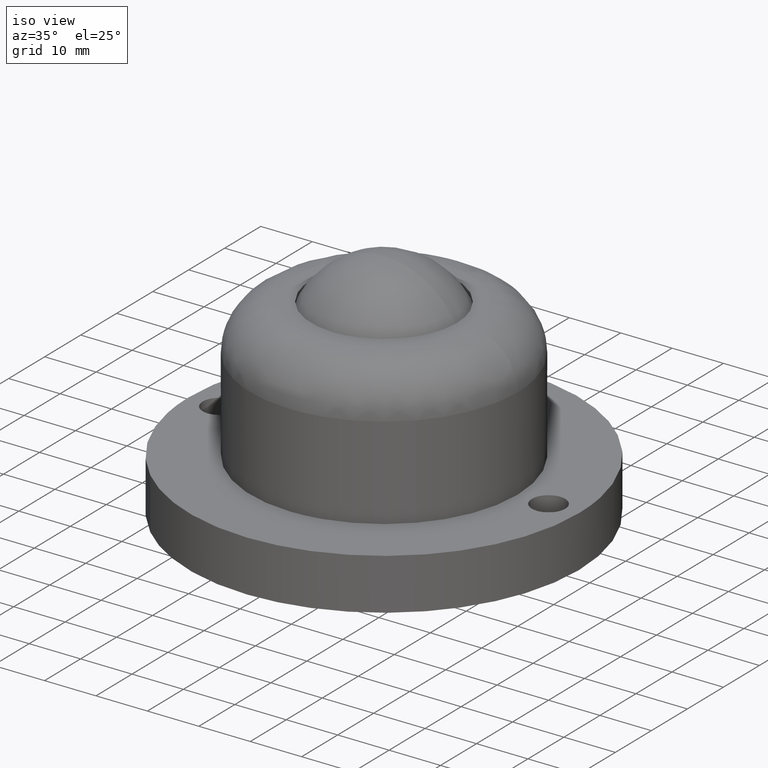
[diagram: clean part render]
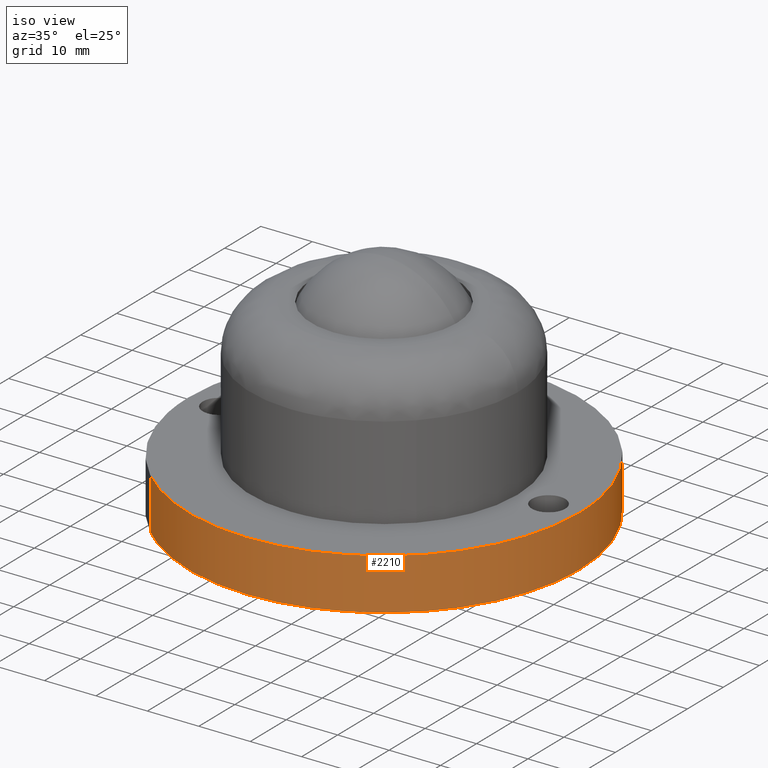
[diagram: same view with one face highlighted and labeled with its STEP entity id]
A machine part, iso view. The second image highlights one B-rep face of the part: STEP entity #2210.
In plain terms, the highlighted face is a freeform B-spline surface patch.
Its self-contained STEP definition (entity closure, byte-faithful):
#1354=CARTESIAN_POINT('',(-26.157473891689861,-27.564226083921952,10.0));
#1355=VERTEX_POINT('',#1354);
#1370=CARTESIAN_POINT('',(0.0,-38.0,10.0));
#1371=VERTEX_POINT('',#1370);
#1372=CARTESIAN_POINT('',(0.0,-38.0,10.0));
#1373=CARTESIAN_POINT('',(-2.028546607708973,-38.000156696778113,10.000000000000011));
#1374=CARTESIAN_POINT('',(-5.259124461051635,-37.740643122633600,9.999999999999988));
#1375=CARTESIAN_POINT('',(-10.337590206314870,-36.671013695031988,10.000000000000011));
#1376=CARTESIAN_POINT('',(-14.682972445446721,-35.172172660471240,9.999999999999988));
#1377=CARTESIAN_POINT('',(-18.515577372101749,-33.246280134189263,9.999999999999984));
#1378=CARTESIAN_POINT('',(-22.279390293117221,-30.899417274987300,10.000000000000030));
#1379=CARTESIAN_POINT('',(-24.631648692373350,-29.012444600076829,9.999999999999879));
#1380=CARTESIAN_POINT('',(-26.157473891689861,-27.564226083921952,10.0));
#1381=B_SPLINE_CURVE_WITH_KNOTS('',3,(#1372,#1373,#1374,#1375,#1376,#1377,#1378,#1379,#1380),.UNSPECIFIED.,.F.,.U.,(4,1,1,1,1,1,4),(7.097299E-009,6.085614396269026,9.691916528045400,15.552117026497649,19.834604807638129,22.539326720501961,28.850334847467629),.UNSPECIFIED.);
#1382=EDGE_CURVE('',#1371,#1355,#1381,.T.);
#1384=CARTESIAN_POINT('',(38.0,0.0,10.0));
#1385=VERTEX_POINT('',#1384);
#1386=CARTESIAN_POINT('',(38.0,0.0,10.0));
#1387=CARTESIAN_POINT('',(38.000016058019831,-1.398982715398931,10.000000000000011));
#1388=CARTESIAN_POINT('',(37.819599233673443,-4.663295104509746,9.999999999999966));
#1389=CARTESIAN_POINT('',(36.920980454370472,-9.490109453441695,10.000000000000091));
#1390=CARTESIAN_POINT('',(35.466099525959777,-13.848828877424650,9.999999999999925));
#1391=CARTESIAN_POINT('',(33.781505492960392,-17.526642949084390,10.000000000000140));
#1392=CARTESIAN_POINT('',(31.676503212990131,-21.164173447673068,9.999999999999753));
#1393=CARTESIAN_POINT('',(29.139141066431261,-24.520366207566649,10.000000000000130));
#1394=CARTESIAN_POINT('',(25.974265528888001,-27.844515324594258,9.999999999999902));
#1395=CARTESIAN_POINT('',(22.278804113610189,-30.954163602915340,10.000000000000050));
#1396=CARTESIAN_POINT('',(17.764956999056839,-33.735435385518088,9.999999999999981));
#1397=CARTESIAN_POINT('',(12.911074633389850,-35.851432480141540,10.000000000000060));
#1398=CARTESIAN_POINT('',(8.496893646154367,-37.131511469634567,9.999999999999826));
#1399=CARTESIAN_POINT('',(4.119230567858747,-37.849603575048157,10.000000000000510));
#1400=CARTESIAN_POINT('',(1.398982529396478,-38.000032603160179,9.999999999999041));
#1401=CARTESIAN_POINT('',(0.0,-38.0,10.0));
#1402=B_SPLINE_CURVE_WITH_KNOTS('',3,(#1386,#1387,#1388,#1389,#1390,#1391,#1392,#1393,#1394,#1395,#1396,#1397,#1398,#1399,#1400,#1401),.UNSPECIFIED.,.F.,.U.,(4,1,1,1,1,1,1,1,1,1,1,1,1,4),(0.000000017775200,4.196958192233026,9.792936329085599,14.689422862083140,17.953743461424200,21.917558790327551,27.280371545114392,30.544644522137499,35.674293273395612,41.736614609533831,46.399924339290394,51.529573690941540,55.493403751083150,59.690354054898677),.UNSPECIFIED.);
#1403=EDGE_CURVE('',#1385,#1371,#1402,.T.);
#1405=CARTESIAN_POINT('',(26.157473891689861,27.564226083921952,10.0));
#1406=VERTEX_POINT('',#1405);
#1407=CARTESIAN_POINT('',(26.157473891689861,27.564226083921952,10.0));
#1408=CARTESIAN_POINT('',(27.905383838530739,25.905920635368851,9.999999999999993));
#1409=CARTESIAN_POINT('',(30.660085047447041,22.741923308706419,10.000000000000020));
#1410=CARTESIAN_POINT('',(33.486873638640887,18.147929570148829,9.999999999999988));
#1411=CARTESIAN_POINT('',(35.313819938473138,14.209232419279759,10.000000000000011));
#1412=CARTESIAN_POINT('',(36.522751301251510,10.712588082947081,9.999999999999881));
#1413=CARTESIAN_POINT('',(37.662707435798083,5.943025234022495,10.000000000000080));
#1414=CARTESIAN_POINT('',(38.000333537338982,2.409403382462443,9.999999999999966));
#1415=CARTESIAN_POINT('',(38.0,0.0,10.0));
#1416=B_SPLINE_CURVE_WITH_KNOTS('',3,(#1407,#1408,#1409,#1410,#1411,#1412,#1413,#1414,#1415),.UNSPECIFIED.,.F.,.U.,(4,1,1,1,1,1,4),(6.089927E-009,7.228128214624093,12.528763079674480,16.142808624630209,20.238754238020810,23.611891310996128,30.840019519529189),.UNSPECIFIED.);
#1417=EDGE_CURVE('',#1406,#1385,#1416,.T.);
#2126=CARTESIAN_POINT('',(26.157473876362641,27.564226098466921,10.250000000000000));
#2127=CARTESIAN_POINT('',(53.721699974829569,1.406752222104277,10.250000000000000));
#2128=CARTESIAN_POINT('',(27.564226098466921,-26.157473876362641,10.250000000000000));
#2129=CARTESIAN_POINT('',(1.406752222104277,-53.721699974829569,10.250000000000000));
#2130=CARTESIAN_POINT('',(-26.157473876362641,-27.564226098466921,10.250000000000000));
#2131=CARTESIAN_POINT('',(26.157473876362641,27.564226098466921,-0.256250000000000));
#2132=CARTESIAN_POINT('',(53.721699974829569,1.406752222104277,-0.256250000000000));
#2133=CARTESIAN_POINT('',(27.564226098466921,-26.157473876362641,-0.256250000000000));
#2134=CARTESIAN_POINT('',(1.406752222104277,-53.721699974829569,-0.256250000000000));
#2135=CARTESIAN_POINT('',(-26.157473876362641,-27.564226098466921,-0.256250000000000));
#2143=(BOUNDED_SURFACE()B_SPLINE_SURFACE(2,1,((#2126,#2131),(#2127,#2132),(#2128,#2133),(#2129,#2134),(#2130,#2135)),.UNSPECIFIED.,.F.,.F.,.U.)B_SPLINE_SURFACE_WITH_KNOTS((3,2,3),(2,2),(0.0,62.960461480710443,125.920922961420900),(0.0,10.506250000000000),.UNSPECIFIED.)GEOMETRIC_REPRESENTATION_ITEM()RATIONAL_B_SPLINE_SURFACE(((1.0,1.0),(0.707106781186548,0.707106781186548),(1.0,1.0),(0.707106781186548,0.707106781186548),(1.0,1.0)))REPRESENTATION_ITEM('')SURFACE());
#2144=CARTESIAN_POINT('',(26.157473891881342,27.564226083740241,-2.914335E-016));
#2145=VERTEX_POINT('',#2144);
#2146=CARTESIAN_POINT('',(38.0,0.0,0.0));
#2147=VERTEX_POINT('',#2146);
#2148=CARTESIAN_POINT('',(26.157473891881342,27.564226083740241,-2.914335E-016));
#2149=CARTESIAN_POINT('',(27.555697281529259,26.237489403314960,-2.774061E-016));
#2150=CARTESIAN_POINT('',(30.149626935639411,23.370644161162719,-2.470953E-016));
#2151=CARTESIAN_POINT('',(33.033311390102817,19.000969794242380,-2.008952E-016));
#2152=CARTESIAN_POINT('',(35.146769086756599,14.662630031390870,-1.550264E-016));
#2153=CARTESIAN_POINT('',(36.753222641513652,10.110252657649969,-1.068946E-016));
#2154=CARTESIAN_POINT('',(37.775668343424648,5.139996365936055,-5.434462E-017));
#2155=CARTESIAN_POINT('',(38.000042826769139,1.606245195222817,-1.698265E-017));
#2156=CARTESIAN_POINT('',(38.0,0.0,0.0));
#2157=B_SPLINE_CURVE_WITH_KNOTS('',3,(#2148,#2149,#2150,#2151,#2152,#2153,#2154,#2155,#2156),.UNSPECIFIED.,.F.,.U.,(4,1,1,1,1,1,4),(6.078906E-009,5.782500829786617,11.565015097231310,15.660941498698490,20.238754237844731,26.021275044094558,30.840019519265280),.UNSPECIFIED.);
#2158=EDGE_CURVE('',#2145,#2147,#2157,.T.);
#2159=ORIENTED_EDGE('',*,*,#2158,.F.);
#2160=CARTESIAN_POINT('',(26.157473891689861,27.564226083921952,10.0));
#2161=CARTESIAN_POINT('',(26.157473891881342,27.564226083740241,-2.914335E-016));
#2162=QUASI_UNIFORM_CURVE('',1,(#2160,#2161),.UNSPECIFIED.,.F.,.U.);
#2163=EDGE_CURVE('',#1406,#2145,#2162,.T.);
#2164=ORIENTED_EDGE('',*,*,#2163,.F.);
#2165=ORIENTED_EDGE('',*,*,#1417,.T.);
#2166=ORIENTED_EDGE('',*,*,#1403,.T.);
#2167=ORIENTED_EDGE('',*,*,#1382,.T.);
#2168=CARTESIAN_POINT('',(-26.157473891881342,-27.564226083740241,-2.914335E-016));
#2169=VERTEX_POINT('',#2168);
#2170=CARTESIAN_POINT('',(-26.157473891689861,-27.564226083921952,10.0));
#2171=CARTESIAN_POINT('',(-26.157473891881342,-27.564226083740241,-2.914335E-016));
#2172=QUASI_UNIFORM_CURVE('',1,(#2170,#2171),.UNSPECIFIED.,.F.,.U.);
#2173=EDGE_CURVE('',#1355,#2169,#2172,.T.);
#2174=ORIENTED_EDGE('',*,*,#2173,.T.);
#2175=CARTESIAN_POINT('',(0.0,-38.0,0.0));
#2176=VERTEX_POINT('',#2175);
#2177=CARTESIAN_POINT('',(0.0,-38.0,0.0));
#2178=CARTESIAN_POINT('',(-1.728014542835451,-38.000068436495162,-1.925268E-017));
#2179=CARTESIAN_POINT('',(-5.259161109388106,-37.758750778294662,-5.859495E-017));
#2180=CARTESIAN_POINT('',(-9.755109776775599,-36.811757223805337,-1.086866E-016));
#2181=CARTESIAN_POINT('',(-14.537049241669710,-35.225578188738083,-1.619646E-016));
#2182=CARTESIAN_POINT('',(-18.683410454457260,-33.233841459527000,-2.081613E-016));
#2183=CARTESIAN_POINT('',(-22.879860751978558,-30.440766655838420,-2.549160E-016));
#2184=CARTESIAN_POINT('',(-25.067540165356590,-28.598589220818582,-2.792900E-016));
#2185=CARTESIAN_POINT('',(-26.157473891881342,-27.564226083740241,-2.914335E-016));
#2186=B_SPLINE_CURVE_WITH_KNOTS('',3,(#2177,#2178,#2179,#2180,#2181,#2182,#2183,#2184,#2185),.UNSPECIFIED.,.F.,.U.,(4,1,1,1,1,1,4),(7.103466E-009,5.184044570142174,10.593483759807800,13.749004655623640,20.285388776830089,24.342477844853271,28.850334847731549),.UNSPECIFIED.);
#2187=EDGE_CURVE('',#2176,#2169,#2186,.T.);
#2188=ORIENTED_EDGE('',*,*,#2187,.F.);
#2189=CARTESIAN_POINT('',(38.0,0.0,0.0));
#2190=CARTESIAN_POINT('',(38.000016172846287,-1.398982740761525,0.0));
#2191=CARTESIAN_POINT('',(37.819599021366123,-4.663295098883793,0.0));
#2192=CARTESIAN_POINT('',(36.920980386368321,-9.490109283786181,0.0));
#2193=CARTESIAN_POINT('',(35.466099666364272,-13.848828972288240,0.0));
#2194=CARTESIAN_POINT('',(33.781505471288568,-17.526642928746568,0.0));
#2195=CARTESIAN_POINT('',(31.676503222575601,-21.164173497242729,0.0));
#2196=CARTESIAN_POINT('',(29.139140980904639,-24.520366016240899,0.0));
#2197=CARTESIAN_POINT('',(25.974266084610019,-27.844516525771660,0.0));
#2198=CARTESIAN_POINT('',(22.278801301870239,-30.954157523967410,0.0));
#2199=CARTESIAN_POINT('',(17.632204322585821,-33.817256036663643,0.0));
#2200=CARTESIAN_POINT('',(12.763500720703281,-35.904241209950868,0.0));
#2201=CARTESIAN_POINT('',(8.942641782572798,-36.986845787716412,0.0));
#2202=CARTESIAN_POINT('',(4.740979609753280,-37.782473897051503,0.0));
#2203=CARTESIAN_POINT('',(2.020776865596123,-38.000162485325262,0.0));
#2204=CARTESIAN_POINT('',(0.0,-38.0,0.0));
#2205=B_SPLINE_CURVE_WITH_KNOTS('',3,(#2189,#2190,#2191,#2192,#2193,#2194,#2195,#2196,#2197,#2198,#2199,#2200,#2201,#2202,#2203,#2204),.UNSPECIFIED.,.F.,.U.,(4,1,1,1,1,1,1,1,1,1,1,1,1,4),(0.000000017775200,4.196958192233026,9.792936329085599,14.689422862083140,17.953743461424200,21.917558790327551,27.280371545114392,30.544644522137499,35.674293273395612,41.736614609533831,46.866258836865192,51.529573690941540,53.628055961756921,59.690354054898677),.UNSPECIFIED.);
#2206=EDGE_CURVE('',#2147,#2176,#2205,.T.);
#2207=ORIENTED_EDGE('',*,*,#2206,.F.);
#2208=EDGE_LOOP('',(#2159,#2164,#2165,#2166,#2167,#2174,#2188,#2207));
#2209=FACE_OUTER_BOUND('',#2208,.T.);
#2210=ADVANCED_FACE('',(#2209),#2143,.T.);